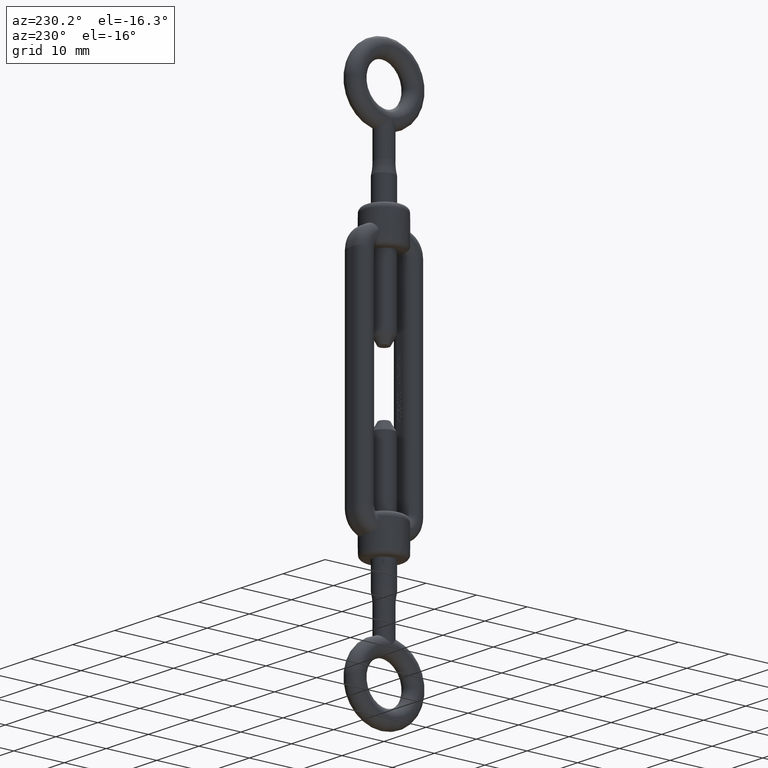
[diagram: clean part render]
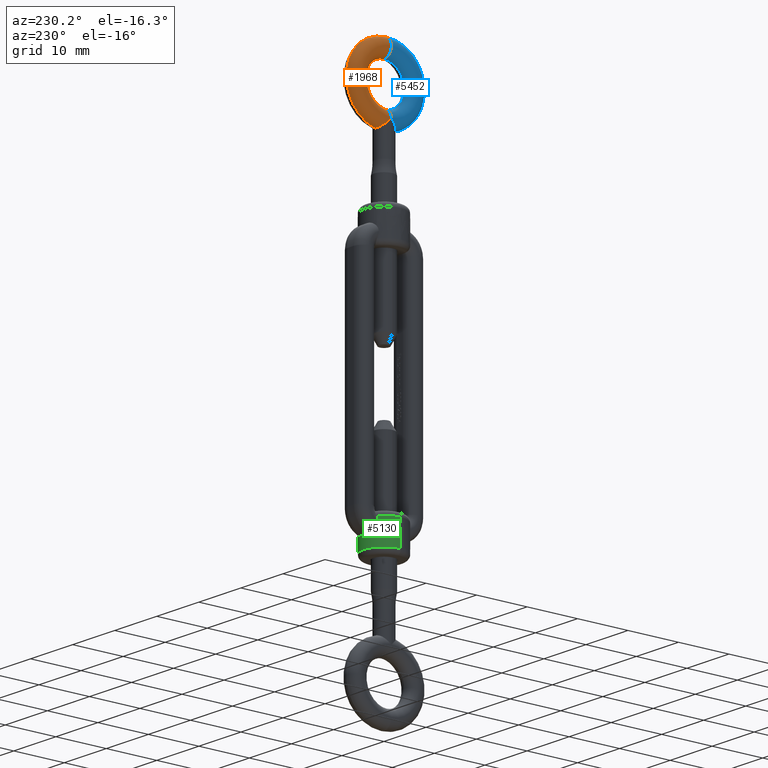
[diagram: same view with three faces highlighted in distinct colors, each labeled with its STEP entity id]
A machine part, auxiliary view with three faces highlighted in distinct colors.
Their STEP definitions:

[orange] entity #1968 — the highlighted toroidal blend (fillet) surface has major radius 5.75 mm and minor (blend) radius 1.75 mm.
#28 = CARTESIAN_POINT ( 'NONE',  ( 4.898587196589411800E-016, -11.50000000000000000, -6.039690927702264700E-016 ) ) ;
#179 = ORIENTED_EDGE ( 'NONE', *, *, #16358, .F. ) ;
#190 = DIRECTION ( 'NONE',  ( -0.0000000000000000000, 1.423099621949588700E-016, -1.000000000000000000 ) ) ;
#296 = CIRCLE ( 'NONE', #7710, 7.500000000000000000 ) ;
#646 = CARTESIAN_POINT ( 'NONE',  ( 0.0000000000000000000, -3.500000000000000000, -6.039690927702267600E-016 ) ) ;
#864 = FACE_OUTER_BOUND ( 'NONE', #17022, .T. ) ;
#1064 = CARTESIAN_POINT ( 'NONE',  ( -1.305437614646590000, -14.43514208946560900, 1.187088151179929600 ) ) ;
#1121 = CARTESIAN_POINT ( 'NONE',  ( -9.552612524160689800E-029, -13.25000000000000000, 1.750000000000022200 ) ) ;
#1195 = VERTEX_POINT ( 'NONE', #646 ) ;
#1296 = EDGE_CURVE ( 'NONE', #12576, #1195, #7466, .T. ) ;
#1493 = DIRECTION ( 'NONE',  ( 0.0000000000000000000, 1.000000000000000000, 1.423099621949588700E-016 ) ) ;
#1968 = ADVANCED_FACE ( 'NONE', ( #864 ), #7454, .T. ) ;
#2264 = CARTESIAN_POINT ( 'NONE',  ( -1.628654069175759800, -14.69680779644374600, 0.6528708544385127800 ) ) ;
#2359 = CARTESIAN_POINT ( 'NONE',  ( 0.0000000000000000000, -7.500000000000000000, -8.182822826210135700E-016 ) ) ;
#2454 = AXIS2_PLACEMENT_3D ( 'NONE', #3974, #6531, #15777 ) ;
#2694 = VERTEX_POINT ( 'NONE', #10900 ) ;
#3156 = EDGE_CURVE ( 'NONE', #1195, #2694, #11772, .T. ) ;
#3604 = CARTESIAN_POINT ( 'NONE',  ( 0.0000000000000000000, -7.500000000000000000, -8.182822826210135700E-016 ) ) ;
#3974 = CARTESIAN_POINT ( 'NONE',  ( 7.041719095097280900E-016, -13.25000000000000000, -1.636564565242027100E-015 ) ) ;
#5049 = CARTESIAN_POINT ( 'NONE',  ( -1.460920818753257400, -14.56195242616321500, 0.9966082880475998200 ) ) ;
#5983 = B_SPLINE_CURVE_WITH_KNOTS ( 'NONE', 3,
 ( #1121, #16959, #11551, #7463, #11494, #16900, #7575, #1064, #5049, #2264, #10184, #8829, #6222, #10295 ),
 .UNSPECIFIED., .F., .F.,
 ( 4, 2, 2, 2, 2, 2, 4 ),
 ( -8.366606524156415700E-006, 0.0008022918922996732800, 0.001207621141711588100, 0.001612950391123502900, 0.002423608889947332700, 0.002828938139359247300, 0.003234267388771162300 ),
 .UNSPECIFIED. ) ;
#6204 = ORIENTED_EDGE ( 'NONE', *, *, #1296, .T. ) ;
#6222 = CARTESIAN_POINT ( 'NONE',  ( -1.750000000000000400, -14.79297607290741100, 0.1341030894688327000 ) ) ;
#6407 = ORIENTED_EDGE ( 'NONE', *, *, #3156, .T. ) ;
#6531 = DIRECTION ( 'NONE',  ( 1.000000000000000000, 1.224646799147353200E-016, 1.742794396888372300E-032 ) ) ;
#6637 = ORIENTED_EDGE ( 'NONE', *, *, #6955, .F. ) ;
#6659 = EDGE_CURVE ( 'NONE', #12576, #15606, #9652, .T. ) ;
#6843 = ORIENTED_EDGE ( 'NONE', *, *, #6659, .F. ) ;
#6955 = EDGE_CURVE ( 'NONE', #15606, #16924, #5983, .T. ) ;
#7454 = TOROIDAL_SURFACE ( 'NONE', #14301, 5.750000000000000000, 1.750000000000000000 ) ;
#7463 = CARTESIAN_POINT ( 'NONE',  ( -0.6752086433902951800, -13.89022875529190900, 1.617678099322227300 ) ) ;
#7466 = CIRCLE ( 'NONE', #11378, 4.000000000000000000 ) ;
#7541 = CARTESIAN_POINT ( 'NONE',  ( 0.0000000000000000000, -7.500000000000000000, -6.039690927702266700E-016 ) ) ;
#7575 = CARTESIAN_POINT ( 'NONE',  ( -1.047768217489153800, -14.21692826441414700, 1.406198127406337500 ) ) ;
#7710 = AXIS2_PLACEMENT_3D ( 'NONE', #3604, #14244, #11546 ) ;
#8467 = CARTESIAN_POINT ( 'NONE',  ( -9.552612524160689800E-029, -13.25000000000000000, 1.750000000000022200 ) ) ;
#8584 = CARTESIAN_POINT ( 'NONE',  ( -1.750000000000000000, -14.79297607290741100, -1.577750232611953600E-015 ) ) ;
#8829 = CARTESIAN_POINT ( 'NONE',  ( -1.734050338042108800, -14.78042951685307200, 0.2704485638592767900 ) ) ;
#9652 = CIRCLE ( 'NONE', #2454, 1.749999999999999800 ) ;
#10184 = CARTESIAN_POINT ( 'NONE',  ( -1.673524086016076700, -14.73246860010923400, 0.5285736789526619400 ) ) ;
#10295 = CARTESIAN_POINT ( 'NONE',  ( -1.750000000000000000, -14.79297607290741100, -1.577750232611953600E-015 ) ) ;
#10900 = CARTESIAN_POINT ( 'NONE',  ( 0.0000000000000000000, 1.084202172485504400E-016, 2.490424338411780800E-016 ) ) ;
#11341 = DIRECTION ( 'NONE',  ( 0.0000000000000000000, 1.000000000000000000, 1.423099621949588700E-016 ) ) ;
#11378 = AXIS2_PLACEMENT_3D ( 'NONE', #7541, #11512, #11341 ) ;
#11494 = CARTESIAN_POINT ( 'NONE',  ( -0.7698749600693963700, -13.97477674287317700, 1.575199880424738200 ) ) ;
#11512 = DIRECTION ( 'NONE',  ( -0.0000000000000000000, 1.423099621949588700E-016, -1.000000000000000000 ) ) ;
#11546 = DIRECTION ( 'NONE',  ( 0.0000000000000000000, 1.000000000000000000, 1.423099621949589000E-016 ) ) ;
#11551 = CARTESIAN_POINT ( 'NONE',  ( -0.3880709002723543600, -13.62827968821732200, 1.718446262443125600 ) ) ;
#11772 = CIRCLE ( 'NONE', #13074, 1.750000000000000000 ) ;
#12576 = VERTEX_POINT ( 'NONE', #28 ) ;
#12725 = DIRECTION ( 'NONE',  ( 0.0000000000000000000, 0.0000000000000000000, 1.000000000000000000 ) ) ;
#12909 = DIRECTION ( 'NONE',  ( -1.000000000000000000, 0.0000000000000000000, 0.0000000000000000000 ) ) ;
#13074 = AXIS2_PLACEMENT_3D ( 'NONE', #15349, #12909, #12725 ) ;
#14244 = DIRECTION ( 'NONE',  ( -0.0000000000000000000, 1.423099621949588700E-016, -1.000000000000000000 ) ) ;
#14301 = AXIS2_PLACEMENT_3D ( 'NONE', #2359, #190, #1493 ) ;
#15349 = CARTESIAN_POINT ( 'NONE',  ( 0.0000000000000000000, -1.749999999999999800, 0.0000000000000000000 ) ) ;
#15606 = VERTEX_POINT ( 'NONE', #8467 ) ;
#15777 = DIRECTION ( 'NONE',  ( -1.224646799147353500E-016, 1.000000000000000000, 0.0000000000000000000 ) ) ;
#16358 = EDGE_CURVE ( 'NONE', #16924, #2694, #296, .T. ) ;
#16900 = CARTESIAN_POINT ( 'NONE',  ( -0.9561496705310642600, -14.13813927545681000, 1.469605363686218100 ) ) ;
#16924 = VERTEX_POINT ( 'NONE', #8584 ) ;
#16959 = CARTESIAN_POINT ( 'NONE',  ( -0.1911232938920006400, -13.44102504788742700, 1.749999999999999100 ) ) ;
#17022 = EDGE_LOOP ( 'NONE', ( #179, #6637, #6843, #6204, #6407 ) ) ;

[blue] entity #5452 — the highlighted toroidal blend (fillet) surface has major radius 5.75 mm and minor (blend) radius 1.75 mm.
#28 = CARTESIAN_POINT ( 'NONE',  ( 4.898587196589411800E-016, -11.50000000000000000, -6.039690927702264700E-016 ) ) ;
#162 = CARTESIAN_POINT ( 'NONE',  ( 1.684158228702846300, -14.74143195564925400, 0.5390904376277408900 ) ) ;
#193 = TOROIDAL_SURFACE ( 'NONE', #9643, 5.750000000000000000, 1.750000000000000000 ) ;
#225 = CARTESIAN_POINT ( 'NONE',  ( 0.1918758031881559500, -13.43948832755127800, 1.742194083755520500 ) ) ;
#646 = CARTESIAN_POINT ( 'NONE',  ( 0.0000000000000000000, -3.500000000000000000, -6.039690927702267600E-016 ) ) ;
#1195 = VERTEX_POINT ( 'NONE', #646 ) ;
#1458 = ORIENTED_EDGE ( 'NONE', *, *, #12920, .T. ) ;
#1468 = CARTESIAN_POINT ( 'NONE',  ( 1.750000000000031100, -14.79297607290757600, 0.2700538098490616300 ) ) ;
#1520 = CARTESIAN_POINT ( 'NONE',  ( -9.552612524160689800E-029, -13.25000000000000000, 1.750000000000022200 ) ) ;
#1576 = CIRCLE ( 'NONE', #5611, 4.000000000000000000 ) ;
#2263 = CIRCLE ( 'NONE', #5895, 7.500000000000000000 ) ;
#2454 = AXIS2_PLACEMENT_3D ( 'NONE', #3974, #6531, #15777 ) ;
#2694 = VERTEX_POINT ( 'NONE', #10900 ) ;
#3156 = EDGE_CURVE ( 'NONE', #1195, #2694, #11772, .T. ) ;
#3307 = EDGE_CURVE ( 'NONE', #2694, #13051, #2263, .T. ) ;
#3684 = FACE_OUTER_BOUND ( 'NONE', #5725, .T. ) ;
#3974 = CARTESIAN_POINT ( 'NONE',  ( 7.041719095097280900E-016, -13.25000000000000000, -1.636564565242027100E-015 ) ) ;
#4072 = DIRECTION ( 'NONE',  ( -0.0000000000000000000, 1.423099621949588700E-016, -1.000000000000000000 ) ) ;
#4128 = CARTESIAN_POINT ( 'NONE',  ( 1.301069729286346700, -14.43026217673550900, 1.176498089493722000 ) ) ;
#5166 = CARTESIAN_POINT ( 'NONE',  ( 0.0000000000000000000, -7.500000000000000000, -8.182822826210135700E-016 ) ) ;
#5288 = DIRECTION ( 'NONE',  ( 0.0000000000000000000, 1.000000000000000000, 1.423099621949589000E-016 ) ) ;
#5452 = ADVANCED_FACE ( 'NONE', ( #3684 ), #193, .T. ) ;
#5463 = CARTESIAN_POINT ( 'NONE',  ( 0.4813851647967313800, -13.71338959315448300, 1.685603199662730500 ) ) ;
#5529 = EDGE_CURVE ( 'NONE', #13051, #15606, #7456, .T. ) ;
#5611 = AXIS2_PLACEMENT_3D ( 'NONE', #14845, #8223, #9571 ) ;
#5725 = EDGE_LOOP ( 'NONE', ( #16104, #8269, #1458, #16980, #9373 ) ) ;
#5895 = AXIS2_PLACEMENT_3D ( 'NONE', #5166, #10410, #5288 ) ;
#6531 = DIRECTION ( 'NONE',  ( 1.000000000000000000, 1.224646799147353200E-016, 1.742794396888372300E-032 ) ) ;
#6659 = EDGE_CURVE ( 'NONE', #12576, #15606, #9652, .T. ) ;
#6855 = CARTESIAN_POINT ( 'NONE',  ( 0.7713981378995112800, -13.97801682233671100, 1.584109910089433100 ) ) ;
#7456 = B_SPLINE_CURVE_WITH_KNOTS ( 'NONE', 3,
 ( #8201, #1468, #162, #10746, #10692, #4128, #16056, #13374, #6855, #5463, #8089, #225, #9435, #1520 ),
 .UNSPECIFIED., .F., .F.,
 ( 4, 2, 2, 2, 2, 2, 4 ),
 ( 0.003212995125030894200, 0.004016885392617449400, 0.004418830526410727800, 0.004820775660204005400, 0.005624665927790560600, 0.006026611061583838100, 0.006428556195377115700 ),
 .UNSPECIFIED. ) ;
#8089 = CARTESIAN_POINT ( 'NONE',  ( 0.3847196433550937900, -13.62333452908117200, 1.709984603830855000 ) ) ;
#8201 = CARTESIAN_POINT ( 'NONE',  ( 1.750000000000000000, -14.79297607290741100, -4.967261505415076400E-015 ) ) ;
#8223 = DIRECTION ( 'NONE',  ( -0.0000000000000000000, 1.423099621949588700E-016, -1.000000000000000000 ) ) ;
#8269 = ORIENTED_EDGE ( 'NONE', *, *, #3156, .F. ) ;
#8467 = CARTESIAN_POINT ( 'NONE',  ( -9.552612524160689800E-029, -13.25000000000000000, 1.750000000000022200 ) ) ;
#9187 = DIRECTION ( 'NONE',  ( 0.0000000000000000000, 1.000000000000000000, 1.423099621949588700E-016 ) ) ;
#9373 = ORIENTED_EDGE ( 'NONE', *, *, #5529, .F. ) ;
#9435 = CARTESIAN_POINT ( 'NONE',  ( 0.09476379763639379600, -13.34471508476386800, 1.749999999999999100 ) ) ;
#9571 = DIRECTION ( 'NONE',  ( 0.0000000000000000000, 1.000000000000000000, 1.423099621949588700E-016 ) ) ;
#9643 = AXIS2_PLACEMENT_3D ( 'NONE', #10533, #4072, #9187 ) ;
#9652 = CIRCLE ( 'NONE', #2454, 1.749999999999999800 ) ;
#10410 = DIRECTION ( 'NONE',  ( -0.0000000000000000000, 1.423099621949588700E-016, -1.000000000000000000 ) ) ;
#10533 = CARTESIAN_POINT ( 'NONE',  ( 0.0000000000000000000, -7.500000000000000000, -8.182822826210135700E-016 ) ) ;
#10692 = CARTESIAN_POINT ( 'NONE',  ( 1.449626109109677600, -14.55244157765659800, 0.9876812941608048600 ) ) ;
#10746 = CARTESIAN_POINT ( 'NONE',  ( 1.517105283262433200, -14.60712424557723700, 0.8814864827718617000 ) ) ;
#10900 = CARTESIAN_POINT ( 'NONE',  ( 0.0000000000000000000, 1.084202172485504400E-016, 2.490424338411780800E-016 ) ) ;
#11772 = CIRCLE ( 'NONE', #13074, 1.750000000000000000 ) ;
#12576 = VERTEX_POINT ( 'NONE', #28 ) ;
#12725 = DIRECTION ( 'NONE',  ( 0.0000000000000000000, 0.0000000000000000000, 1.000000000000000000 ) ) ;
#12909 = DIRECTION ( 'NONE',  ( -1.000000000000000000, 0.0000000000000000000, 0.0000000000000000000 ) ) ;
#12920 = EDGE_CURVE ( 'NONE', #1195, #12576, #1576, .T. ) ;
#13051 = VERTEX_POINT ( 'NONE', #16412 ) ;
#13074 = AXIS2_PLACEMENT_3D ( 'NONE', #15349, #12909, #12725 ) ;
#13374 = CARTESIAN_POINT ( 'NONE',  ( 0.9591063090738866100, -14.14182032543251900, 1.481318761564826700 ) ) ;
#14845 = CARTESIAN_POINT ( 'NONE',  ( 0.0000000000000000000, -7.500000000000000000, -6.039690927702266700E-016 ) ) ;
#15349 = CARTESIAN_POINT ( 'NONE',  ( 0.0000000000000000000, -1.749999999999999800, 0.0000000000000000000 ) ) ;
#15606 = VERTEX_POINT ( 'NONE', #8467 ) ;
#15777 = DIRECTION ( 'NONE',  ( -1.224646799147353500E-016, 1.000000000000000000, 0.0000000000000000000 ) ) ;
#16056 = CARTESIAN_POINT ( 'NONE',  ( 1.219108316923303500, -14.36204301318947800, 1.260633752513307100 ) ) ;
#16104 = ORIENTED_EDGE ( 'NONE', *, *, #3307, .F. ) ;
#16412 = CARTESIAN_POINT ( 'NONE',  ( 1.750000000000000000, -14.79297607290741100, -4.967261505415076400E-015 ) ) ;
#16980 = ORIENTED_EDGE ( 'NONE', *, *, #6659, .T. ) ;

[green] entity #5130 — the highlighted cylindrical surface (edge-blend (fillet) strip) has radius 4 mm, axis along (0, 0, 1).
#208 = DIRECTION ( 'NONE',  ( 0.0000000000000000000, 0.0000000000000000000, -1.000000000000000000 ) ) ;
#286 = CARTESIAN_POINT ( 'NONE',  ( 1.386212166809356300, 3.764010895535077100, -24.58570348846351900 ) ) ;
#291 = CIRCLE ( 'NONE', #15627, 4.000000000000017800 ) ;
#330 = EDGE_CURVE ( 'NONE', #10597, #5679, #291, .T. ) ;
#396 = FACE_OUTER_BOUND ( 'NONE', #13273, .T. ) ;
#425 = LINE ( 'NONE', #2794, #15515 ) ;
#623 = CARTESIAN_POINT ( 'NONE',  ( 0.7499999999999984500, 3.929058411375446100, -24.61151375137878700 ) ) ;
#948 = ORIENTED_EDGE ( 'NONE', *, *, #14588, .F. ) ;
#1561 = VECTOR ( 'NONE', #5844, 1000.000000000000000 ) ;
#1930 = DIRECTION ( 'NONE',  ( -0.0000000000000000000, -0.0000000000000000000, 1.000000000000000000 ) ) ;
#2158 = CARTESIAN_POINT ( 'NONE',  ( -4.000000000000017800, 5.371603919900082900E-016, -27.00000000000000000 ) ) ;
#2355 = CARTESIAN_POINT ( 'NONE',  ( -1.371804169242109200, 3.760827196330431400, -24.56759669714698200 ) ) ;
#2425 = CIRCLE ( 'NONE', #8632, 4.000000000000017800 ) ;
#2526 = CARTESIAN_POINT ( 'NONE',  ( -1.519110280752456600, 3.703287374382887800, -24.52220438770821800 ) ) ;
#2583 = CARTESIAN_POINT ( 'NONE',  ( -2.229038536411678700, 3.322603432206726800, -23.99141542557785200 ) ) ;
#2747 = CARTESIAN_POINT ( 'NONE',  ( 0.7499999999999984500, 3.929058411375446100, -24.61151375137878700 ) ) ;
#2794 = CARTESIAN_POINT ( 'NONE',  ( 4.000000000000017800, 4.730167233106488900E-017, 21.00000000000000000 ) ) ;
#2960 = EDGE_CURVE ( 'NONE', #16690, #15934, #4669, .T. ) ;
#2963 = CARTESIAN_POINT ( 'NONE',  ( 2.285367486464754600, 3.282848679395671700, -22.00000000000001100 ) ) ;
#3132 = CARTESIAN_POINT ( 'NONE',  ( 2.476077322336597900, 3.141606131721939900, -22.59870862083341700 ) ) ;
#3430 = ORIENTED_EDGE ( 'NONE', *, *, #2960, .F. ) ;
#3691 = CARTESIAN_POINT ( 'NONE',  ( -2.378056580479061700, 3.217631623502054800, -23.72367511925732900 ) ) ;
#3753 = CARTESIAN_POINT ( 'NONE',  ( -2.285367486464755500, 3.282848679395670800, -22.00000000000000400 ) ) ;
#3868 = CARTESIAN_POINT ( 'NONE',  ( -2.389663278387281800, 3.210242770591276200, -22.30010719318571300 ) ) ;
#4016 = VERTEX_POINT ( 'NONE', #2747 ) ;
#4238 = DIRECTION ( 'NONE',  ( -0.9997483258104811200, -0.02243401522554804700, 0.0000000000000000000 ) ) ;
#4342 = CARTESIAN_POINT ( 'NONE',  ( 0.0000000000000000000, 4.730167233106488900E-017, -23.62820512820513100 ) ) ;
#4386 = EDGE_CURVE ( 'NONE', #9815, #8821, #14053, .T. ) ;
#4392 = DIRECTION ( 'NONE',  ( -0.0000000000000000000, -0.0000000000000000000, 1.000000000000000000 ) ) ;
#4468 = CARTESIAN_POINT ( 'NONE',  ( 2.138963950322115600, 3.382475779883685100, -24.10548879790942700 ) ) ;
#4513 = ORIENTED_EDGE ( 'NONE', *, *, #11699, .T. ) ;
#4669 = B_SPLINE_CURVE_WITH_KNOTS ( 'NONE', 3,
 ( #15618, #16992, #6544, #2355, #2526, #11637, #10495, #11760, #2583, #3691, #16930, #9040, #7718, #8975, #3868, #3753 ),
 .UNSPECIFIED., .F., .F.,
 ( 4, 2, 2, 2, 2, 2, 2, 4 ),
 ( 2.014117449053247000E-007, 0.0004844429265932985300, 0.0009686844414416917200, 0.001452925956290085000, 0.001937167471138478100, 0.002421408985986871000, 0.002905650500835264400, 0.003874133530532061100 ),
 .UNSPECIFIED. ) ;
#4903 = AXIS2_PLACEMENT_3D ( 'NONE', #8721, #11214, #14085 ) ;
#4995 = ORIENTED_EDGE ( 'NONE', *, *, #8676, .T. ) ;
#5130 = ADVANCED_FACE ( 'NONE', ( #396 ), #14033, .T. ) ;
#5222 = ORIENTED_EDGE ( 'NONE', *, *, #12200, .T. ) ;
#5334 = CIRCLE ( 'NONE', #7464, 4.000000000000017800 ) ;
#5449 = CARTESIAN_POINT ( 'NONE',  ( 0.0000000000000000000, 4.730167233106488900E-017, -22.00000000000000400 ) ) ;
#5468 = CARTESIAN_POINT ( 'NONE',  ( -3.899747694719006800, 0.8899257932737587600, -23.62820512820513100 ) ) ;
#5509 = CARTESIAN_POINT ( 'NONE',  ( -0.7499999999999984500, 3.929058411375446100, -24.61151375137878700 ) ) ;
#5679 = VERTEX_POINT ( 'NONE', #11372 ) ;
#5844 = DIRECTION ( 'NONE',  ( -0.0000000000000000000, -0.0000000000000000000, 1.000000000000000000 ) ) ;
#5851 = ORIENTED_EDGE ( 'NONE', *, *, #330, .T. ) ;
#5918 = EDGE_CURVE ( 'NONE', #6416, #15217, #2425, .T. ) ;
#5973 = ORIENTED_EDGE ( 'NONE', *, *, #5918, .T. ) ;
#6290 = VERTEX_POINT ( 'NONE', #12290 ) ;
#6416 = VERTEX_POINT ( 'NONE', #10363 ) ;
#6544 = CARTESIAN_POINT ( 'NONE',  ( -1.066627542642637300, 3.858493691155237700, -24.61884925725691900 ) ) ;
#6672 = CARTESIAN_POINT ( 'NONE',  ( 0.0000000000000000000, 4.730167233106488900E-017, -22.00000000000000400 ) ) ;
#6726 = CARTESIAN_POINT ( 'NONE',  ( 0.5048697926878871200, 3.975850196132781500, -24.59069783960785200 ) ) ;
#6801 = DIRECTION ( 'NONE',  ( -0.0000000000000000000, -0.0000000000000000000, 1.000000000000000000 ) ) ;
#6977 = LINE ( 'NONE', #5468, #15675 ) ;
#7073 = CARTESIAN_POINT ( 'NONE',  ( 2.381679117500231400, 3.214948020150076900, -23.71540290496990600 ) ) ;
#7169 = CARTESIAN_POINT ( 'NONE',  ( 0.2554559866480501900, 3.999909526473360200, -24.57925775124859100 ) ) ;
#7464 = AXIS2_PLACEMENT_3D ( 'NONE', #5449, #208, #9360 ) ;
#7718 = CARTESIAN_POINT ( 'NONE',  ( -2.505790819555485900, 3.117876125599463100, -23.09608957247213500 ) ) ;
#7788 = DIRECTION ( 'NONE',  ( -1.000000000000000000, 0.0000000000000000000, 0.0000000000000000000 ) ) ;
#8070 = CARTESIAN_POINT ( 'NONE',  ( 0.7499999999999984500, 3.929058411375446100, -24.61151375137878700 ) ) ;
#8155 = CARTESIAN_POINT ( 'NONE',  ( 1.794267954794493500, 3.578120044754975900, -24.39218967301064500 ) ) ;
#8188 = DIRECTION ( 'NONE',  ( 1.000000000000000000, 0.0000000000000000000, 0.0000000000000000000 ) ) ;
#8523 = CARTESIAN_POINT ( 'NONE',  ( -0.2526147680570189300, 4.000089968993966800, -24.57917370549899200 ) ) ;
#8593 = CIRCLE ( 'NONE', #14147, 4.000000000000017800 ) ;
#8632 = AXIS2_PLACEMENT_3D ( 'NONE', #9534, #10844, #8188 ) ;
#8676 = EDGE_CURVE ( 'NONE', #8821, #15273, #15016, .T. ) ;
#8721 = CARTESIAN_POINT ( 'NONE',  ( 0.0000000000000000000, 4.730167233106488900E-017, 21.00000000000000000 ) ) ;
#8821 = VERTEX_POINT ( 'NONE', #13045 ) ;
#8975 = CARTESIAN_POINT ( 'NONE',  ( -2.478139809287708100, 3.139964928057228800, -22.60798330392392700 ) ) ;
#9040 = CARTESIAN_POINT ( 'NONE',  ( -2.496662105179642900, 3.125435674280250300, -23.25929025545020300 ) ) ;
#9360 = DIRECTION ( 'NONE',  ( -1.000000000000000000, 0.0000000000000000000, 0.0000000000000000000 ) ) ;
#9502 = CARTESIAN_POINT ( 'NONE',  ( 1.071047328436506300, 3.867775154392165700, -24.63877637615440000 ) ) ;
#9534 = CARTESIAN_POINT ( 'NONE',  ( 0.0000000000000000000, 4.730167233106488900E-017, -27.00000000000000000 ) ) ;
#9774 = DIRECTION ( 'NONE',  ( -0.9839353734537478200, -0.1785250146798317800, 0.0000000000000000000 ) ) ;
#9815 = VERTEX_POINT ( 'NONE', #12501 ) ;
#9833 = CARTESIAN_POINT ( 'NONE',  ( 0.0000000000000000000, 4.730167233106488900E-017, -23.00000000000000400 ) ) ;
#10012 = ORIENTED_EDGE ( 'NONE', *, *, #10799, .F. ) ;
#10019 = ORIENTED_EDGE ( 'NONE', *, *, #12682, .F. ) ;
#10363 = CARTESIAN_POINT ( 'NONE',  ( 4.000000000000017800, 4.730167233106488900E-017, -27.00000000000000000 ) ) ;
#10376 = EDGE_CURVE ( 'NONE', #6416, #5679, #425, .T. ) ;
#10477 = CARTESIAN_POINT ( 'NONE',  ( -4.000000000000017800, 5.371603919900082900E-016, -22.00000000000000400 ) ) ;
#10495 = CARTESIAN_POINT ( 'NONE',  ( -1.915807076917280400, 3.513640479461432400, -24.31116552042231000 ) ) ;
#10597 = VERTEX_POINT ( 'NONE', #15422 ) ;
#10799 = EDGE_CURVE ( 'NONE', #10597, #4016, #12958, .T. ) ;
#10844 = DIRECTION ( 'NONE',  ( -0.0000000000000000000, -0.0000000000000000000, 1.000000000000000000 ) ) ;
#10924 = CARTESIAN_POINT ( 'NONE',  ( 2.388727490320236700, 3.210894222982989100, -22.29741449844381100 ) ) ;
#10977 = CARTESIAN_POINT ( 'NONE',  ( 2.435236385432427500, 3.173514875280989000, -23.56578017992050900 ) ) ;
#11204 = B_SPLINE_CURVE_WITH_KNOTS ( 'NONE', 3,
 ( #8070, #6726, #7169, #8523, #16432, #13702 ),
 .UNSPECIFIED., .F., .F.,
 ( 4, 2, 4 ),
 ( 0.01777998611686817900, 0.01853277260169558500, 0.01928555908652299100 ),
 .UNSPECIFIED. ) ;
#11214 = DIRECTION ( 'NONE',  ( -0.0000000000000000000, -0.0000000000000000000, 1.000000000000000000 ) ) ;
#11372 = CARTESIAN_POINT ( 'NONE',  ( 4.000000000000017800, 4.730167233106488900E-017, -22.00000000000000400 ) ) ;
#11542 = CARTESIAN_POINT ( 'NONE',  ( -3.899747694719006800, 0.8899257932737587600, -23.62820512820513100 ) ) ;
#11603 = VECTOR ( 'NONE', #1930, 1000.000000000000000 ) ;
#11637 = CARTESIAN_POINT ( 'NONE',  ( -1.789405841620876200, 3.580511158525358200, -24.39495596793365500 ) ) ;
#11699 = EDGE_CURVE ( 'NONE', #15273, #15934, #5334, .T. ) ;
#11760 = CARTESIAN_POINT ( 'NONE',  ( -2.133886989436877300, 3.385633248180955700, -24.11095676014381100 ) ) ;
#12200 = EDGE_CURVE ( 'NONE', #15518, #9815, #6977, .T. ) ;
#12290 = CARTESIAN_POINT ( 'NONE',  ( -4.000000000000017800, 5.371603919900082900E-016, -23.62820512820513100 ) ) ;
#12378 = CARTESIAN_POINT ( 'NONE',  ( 2.232963278390114800, 3.319964034197484100, -23.98604057360628200 ) ) ;
#12501 = CARTESIAN_POINT ( 'NONE',  ( -3.899747694719006400, 0.8899257932737596500, -23.00000000000000400 ) ) ;
#12682 = EDGE_CURVE ( 'NONE', #15518, #6290, #8593, .T. ) ;
#12792 = CARTESIAN_POINT ( 'NONE',  ( -2.285367486464755500, 3.282848679395670800, -22.00000000000000400 ) ) ;
#12958 = B_SPLINE_CURVE_WITH_KNOTS ( 'NONE', 3,
 ( #2963, #10924, #3132, #14998, #14943, #10977, #7073, #12378, #4468, #16120, #8155, #286, #9502, #623 ),
 .UNSPECIFIED., .F., .F.,
 ( 4, 2, 2, 2, 2, 2, 4 ),
 ( 2.151219171439462900E-007, 0.0009599175930081974700, 0.001439768828553729200, 0.001919620064099261200, 0.002399471299644793200, 0.002879322535190324900, 0.003839025006281388000 ),
 .UNSPECIFIED. ) ;
#13045 = CARTESIAN_POINT ( 'NONE',  ( -4.000000000000017800, 5.371603919900082900E-016, -23.00000000000000400 ) ) ;
#13273 = EDGE_LOOP ( 'NONE', ( #5973, #14623, #10019, #5222, #15727, #4995, #4513, #3430, #948, #10012, #5851, #13302 ) ) ;
#13302 = ORIENTED_EDGE ( 'NONE', *, *, #10376, .F. ) ;
#13691 = CARTESIAN_POINT ( 'NONE',  ( -4.000000000000017800, 5.371603919900082900E-016, 21.00000000000000000 ) ) ;
#13702 = CARTESIAN_POINT ( 'NONE',  ( -0.7499999999999984500, 3.929058411375446100, -24.61151375137878700 ) ) ;
#13759 = AXIS2_PLACEMENT_3D ( 'NONE', #9833, #16443, #9774 ) ;
#14033 = CYLINDRICAL_SURFACE ( 'NONE', #4903, 4.000000000000017800 ) ;
#14053 = CIRCLE ( 'NONE', #13759, 4.000000000000016900 ) ;
#14085 = DIRECTION ( 'NONE',  ( 1.000000000000000000, 0.0000000000000000000, 0.0000000000000000000 ) ) ;
#14147 = AXIS2_PLACEMENT_3D ( 'NONE', #4342, #4392, #4238 ) ;
#14588 = EDGE_CURVE ( 'NONE', #4016, #16690, #11204, .T. ) ;
#14623 = ORIENTED_EDGE ( 'NONE', *, *, #17038, .T. ) ;
#14943 = CARTESIAN_POINT ( 'NONE',  ( 2.497682262829630700, 3.124604971914043200, -23.24924549251396800 ) ) ;
#14962 = CARTESIAN_POINT ( 'NONE',  ( -4.000000000000017800, 5.371603919900082900E-016, 21.00000000000000000 ) ) ;
#14998 = CARTESIAN_POINT ( 'NONE',  ( 2.505915121698894000, 3.117779883364030400, -23.08535089372181300 ) ) ;
#15016 = LINE ( 'NONE', #13691, #1561 ) ;
#15151 = LINE ( 'NONE', #14962, #11603 ) ;
#15217 = VERTEX_POINT ( 'NONE', #2158 ) ;
#15273 = VERTEX_POINT ( 'NONE', #10477 ) ;
#15422 = CARTESIAN_POINT ( 'NONE',  ( 2.285367486464754600, 3.282848679395671700, -22.00000000000001100 ) ) ;
#15515 = VECTOR ( 'NONE', #6801, 1000.000000000000000 ) ;
#15518 = VERTEX_POINT ( 'NONE', #11542 ) ;
#15618 = CARTESIAN_POINT ( 'NONE',  ( -0.7499999999999984500, 3.929058411375446100, -24.61151375137878700 ) ) ;
#15627 = AXIS2_PLACEMENT_3D ( 'NONE', #6672, #15915, #7788 ) ;
#15675 = VECTOR ( 'NONE', #16173, 1000.000000000000000 ) ;
#15727 = ORIENTED_EDGE ( 'NONE', *, *, #4386, .T. ) ;
#15915 = DIRECTION ( 'NONE',  ( 0.0000000000000000000, 0.0000000000000000000, -1.000000000000000000 ) ) ;
#15934 = VERTEX_POINT ( 'NONE', #12792 ) ;
#16120 = CARTESIAN_POINT ( 'NONE',  ( 1.918844120918645100, 3.512028818488437000, -24.30915524562823600 ) ) ;
#16173 = DIRECTION ( 'NONE',  ( 0.0000000000000000000, 0.0000000000000000000, 1.000000000000000000 ) ) ;
#16432 = CARTESIAN_POINT ( 'NONE',  ( -0.5042375984520788300, 3.975970872800628400, -24.59064415508003500 ) ) ;
#16443 = DIRECTION ( 'NONE',  ( -0.0000000000000000000, -0.0000000000000000000, 1.000000000000000000 ) ) ;
#16690 = VERTEX_POINT ( 'NONE', #5509 ) ;
#16930 = CARTESIAN_POINT ( 'NONE',  ( -2.432289659441130100, 3.175789167133019000, -23.57552887162764700 ) ) ;
#16992 = CARTESIAN_POINT ( 'NONE',  ( -0.9102807958134563300, 3.898463142923325600, -24.62512443992188300 ) ) ;
#17038 = EDGE_CURVE ( 'NONE', #15217, #6290, #15151, .T. ) ;